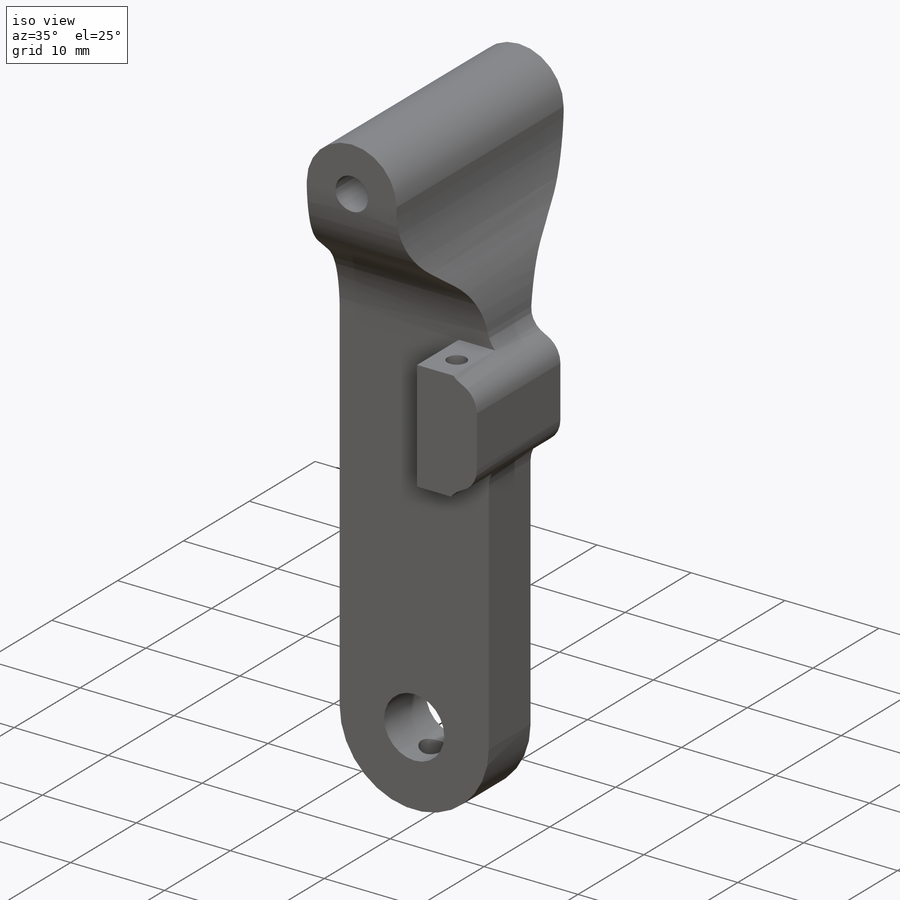
[diagram: iso view]
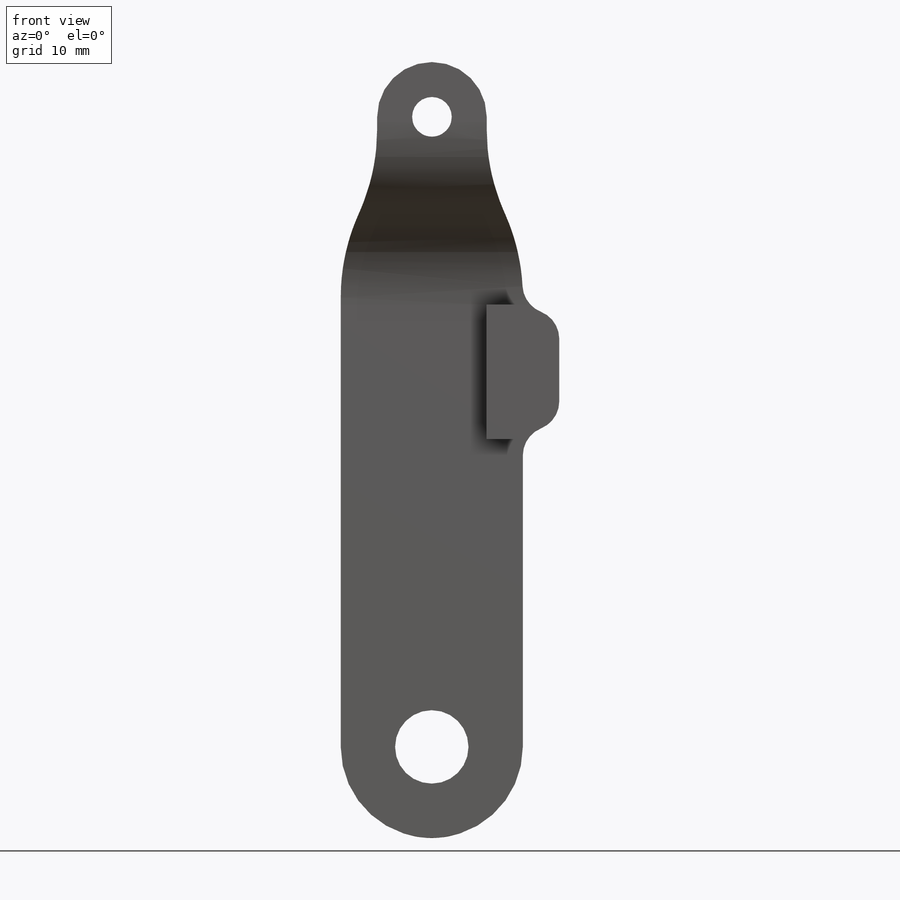
[diagram: front view]
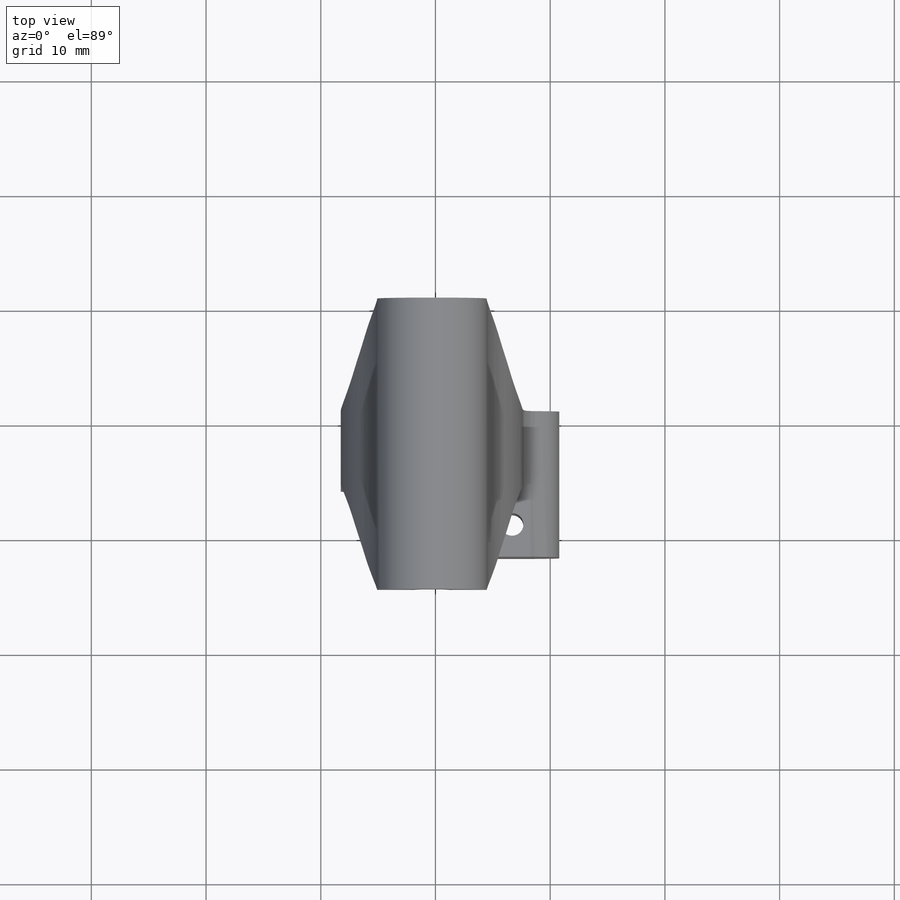
[diagram: top view]
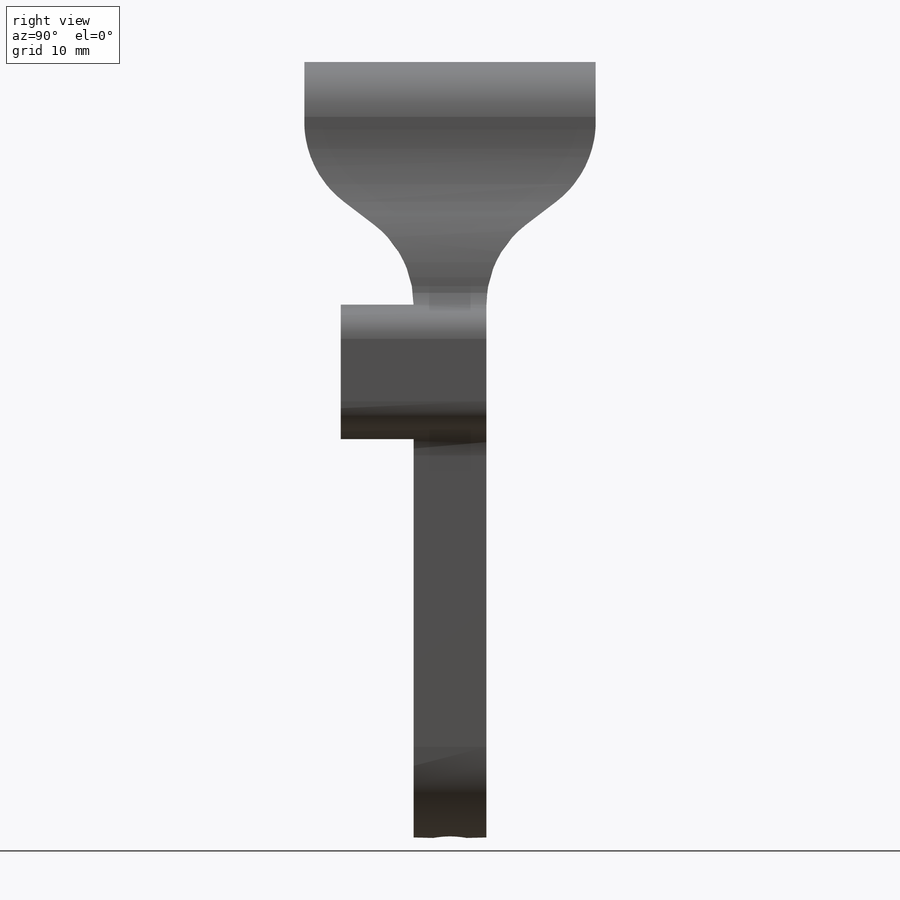
[diagram: right view]
SOLIDWORKS PART (.sldprt)
format: sldprt  version: not decoded by parser v0  size: 505,344 bytes
history: native  units: mm
features: sketch x10, extrude x7, cut_extrude x6, fillet x4, plane x2, material x1, hole x1 (+13 scaffold rows collapsed)
feature tree (44):
  scaffold x13  (default folders/planes/origin — collapsed)
  material  "Material <not specified>"
  sketch  "Sketch1"  dims[D1=22.225mm D2=67.6402mm]
  extrude  "Boss-Extrude1"  Depth=25.4mm
  sketch  "Sketch2"  dims[c1.D1=~4.226333mm c1.D3=~2.808659mm c1.D7=~9.021651mm c1.D9=16.51mm c1.D10=15.875mm c1.D11=9.5504mm c1.D6=17.78mm c2.D3=9.5504mm c2.D4=2.5273mm c2.D1=4.7752mm c2.D2=13.6652mm c3.D3=40.9702mm c3.D4=40.9702mm c3.D5=18.415mm c3.D6=13.335mm c3.D7=35.8902mm c3.D8=21.59mm c3.D9=4.7752mm c4.D8=21.59mm c4.D9=4.7752mm c4.D10=22.225mm c4.D2=7.9502mm c4.D11=~24.267145mm c4.D6=4.7752mm]
  cut_extrude  "Cut-Extrude2"  Depth=25.4mm
  sketch  "Sketch4"  dims[c1.D3=8.763mm c1.D1=9.525mm c1.D2=9.525mm c2.D3=9.5504mm c2.D1=6.35mm c2.D2=9.525mm c2.D4=~62.453703mm]
  cut_extrude  "Cut-Extrude3"  [1 undecoded]
  extrude  "Point2"  [1 undecoded]
  extrude  "Point3"  [1 undecoded]
  plane  "Plane1"
  sketch  "Sketch5"  dims[D1=0.0254mm]
  cut_extrude  "Cut-Extrude4"  [1 undecoded]
  extrude  "Point4"  [1 undecoded]
  plane  "Plane2"
  extrude  "Point5"  [1 undecoded]
  sketch  "Sketch6"
  cut_extrude  "Cut-Extrude5"  [1 undecoded]
  fillet  "Fillet1"  Radius=2.54mm
  fillet  "Fillet2"  Radius=2.54mm
  fillet  "Fillet3"  Radius=2.54mm
  fillet  "Fillet4"  Radius=2.54mm
  hole  "#29 (0.136) Diameter Hole2"  Diameter=3.4544mm Depth=25.4mm
  sketch  "Sketch17"
  sketch  "Sketch16"  dims[hole-wizard template sketch: 60 standard entries collapsed; hole parameters kept: c18.Thru Hole Depth=25.4mm]
  sketch  "Sketch8"  dims[D1=6.35mm]
  extrude  "Boss-Extrude2"  Depth=6.35mm _TNextInd=44 _TCompTag=0mm _TElemType=0mm _TAttDefEntBased2=0mm _TAttDefNameBased2=0mm _TVElType=0mm _TDbl1=-0.020234 _TDbl2=0.036378 _TDbl3=0 _TDbl4=-0.020234 _TDbl5=0.036378 _TDbl6=0 _TDbl7=-0.020234 _TDbl8=0.036378 _TDbl9=0
  sketch  "Sketch11"  dims[D1=0.0mm]
  cut_extrude  "Cut-Extrude6"  [1 undecoded]
  extrude  "Point6"  [1 undecoded]
  sketch  "Sketch18"  dims[c1.D4=3.048mm c1.D1=8.001mm c1.D2=4.826mm c1.D3=4.826mm c2.D4=6.223mm]
  cut_extrude  "Cut-Extrude8"  [1 undecoded]
decode coverage: 16 of 28 modeling features carry decoded parameters
note: ~ marks probable driven/reference dimensions
note: 10 parameter values undecoded
summary: no parameter record found for 10 features
note: suppression state not decoded; provenance and decode notes live in map.json
